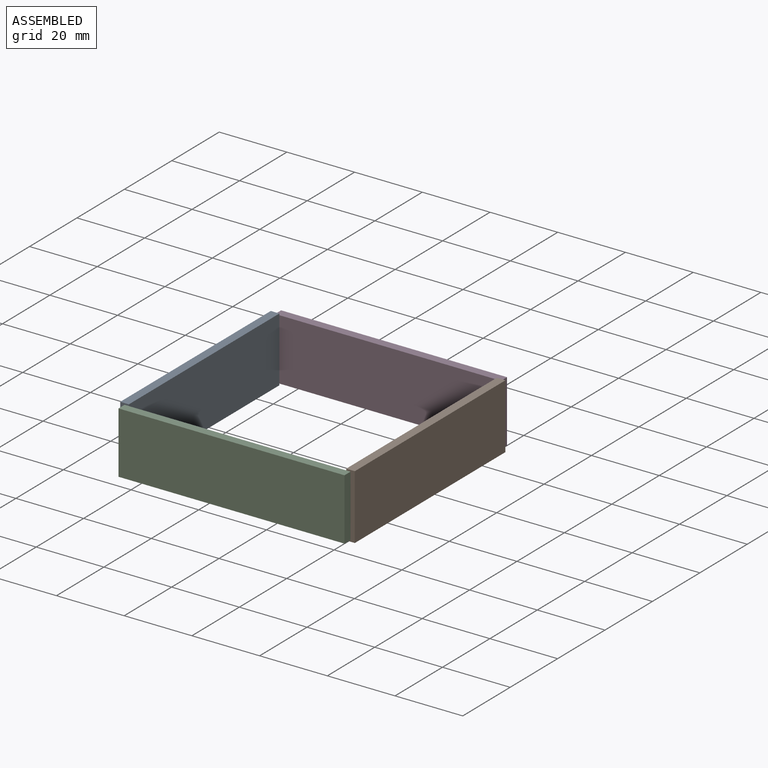
[diagram: assembled view]
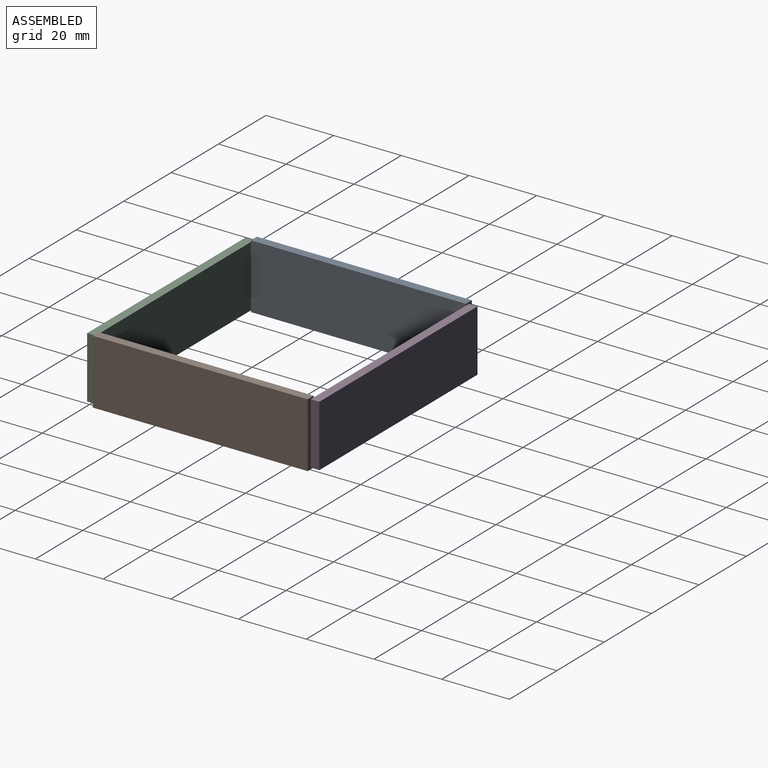
[diagram: assembled view, second angle]
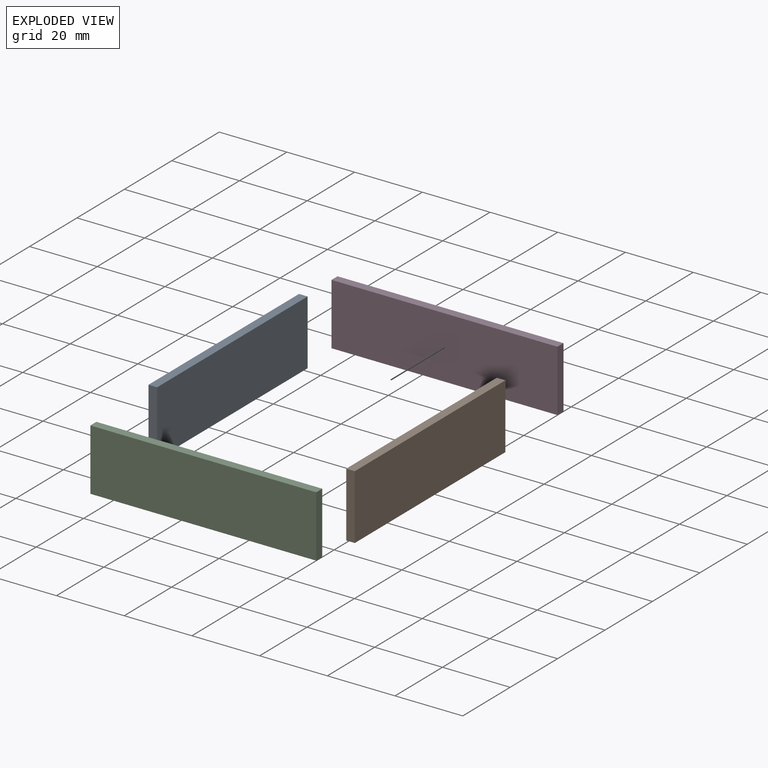
[diagram: exploded view]
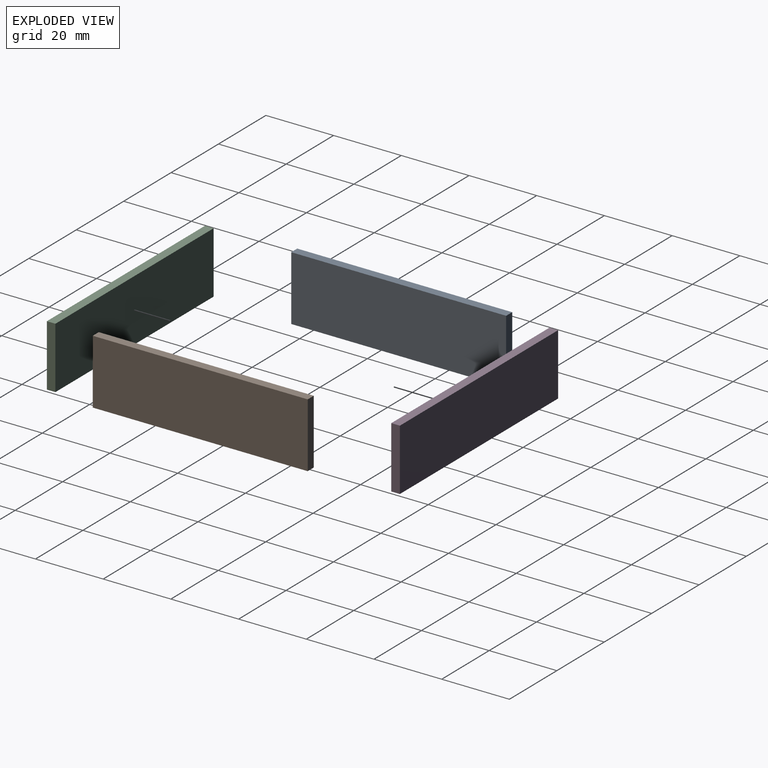
[diagram: exploded view, second angle]
ASSEMBLY  parts=4 mates=3
PART A: 6 faces, bbox 2.5x63.5x19.2 mm
  f0: plane 19.17x2.54mm, normal (0,-1,0), area 48.7mm2, adj f1,f3,f4,f5
  f1: plane 63.5x2.54mm, normal (0,0,-1), area 161.3mm2, adj f0,f2,f4,f5
  f2: plane 19.17x2.54mm, normal (0,1,0), area 48.7mm2, adj f1,f3,f4,f5
  f3: plane 63.5x2.54mm, normal (0,0,1), area 161.3mm2, adj f0,f2,f4,f5
  f4: plane 63.5x19.17mm, normal (1,0,0), area 1217.1mm2, adj f0,f1,f2,f3
  f5: plane 63.5x19.17mm, normal (-1,0,0), area 1217.1mm2, adj f0,f1,f2,f3
PART B: same geometry as A
PART C: 6 faces, bbox 66.7x2.5x18.2 mm
  f0: plane 18.25x2.54mm, normal (-1,0,0), area 46.3mm2, adj f1,f3,f4,f5
  f1: plane 66.74x2.54mm, normal (0,0,-1), area 169.5mm2, adj f0,f2,f4,f5
  f2: plane 18.25x2.54mm, normal (1,0,0), area 46.3mm2, adj f1,f3,f4,f5
  f3: plane 66.74x2.54mm, normal (0,0,1), area 169.5mm2, adj f0,f2,f4,f5
  f4: plane 66.74x18.25mm, normal (0,-1,0), area 1217.8mm2, adj f0,f1,f2,f3
  f5: plane 66.74x18.25mm, normal (0,1,0), area 1217.8mm2, adj f0,f1,f2,f3
PART D: same geometry as C
PLACE A t=(-85.6,-76.53,12.32)mm
PLACE B t=(-18.86,-76.53,12.32)mm
PLACE C t=(-17.59,-76.53,12.78)mm
PLACE D t=(-17.59,-10.49,12.78)mm
MATE fastened A.f2 <-> D.f4  axis (0,1,0) through (-84.33,-13.03,21.91)mm
MATE fastened B.f2 <-> D.f4  axis (0,1,0) through (-17.59,-13.03,21.91)mm
MATE fastened B.f0 <-> C.f5  axis (0,-1,0) through (-17.59,-76.53,21.91)mm
